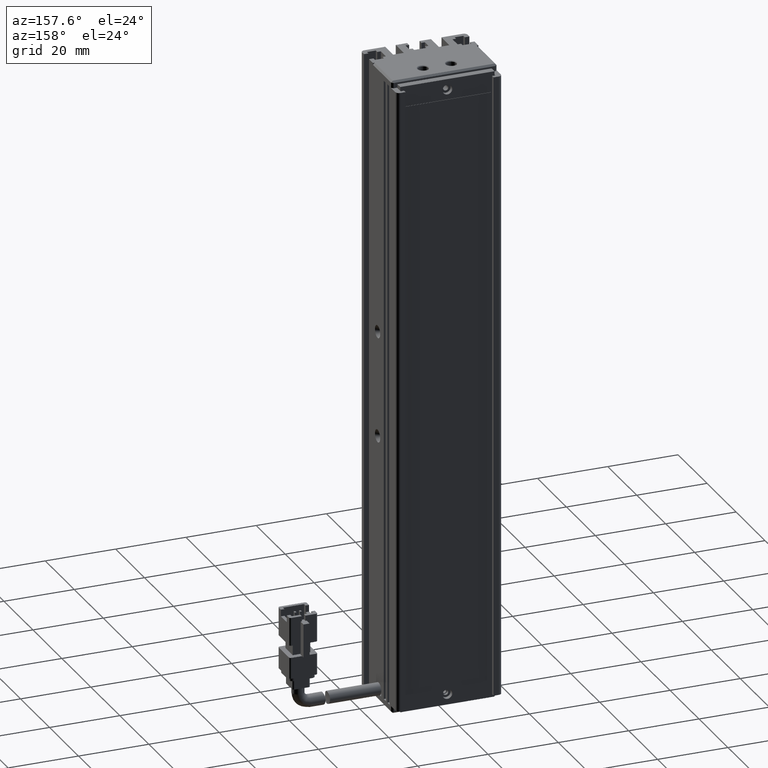
[diagram: clean part render]
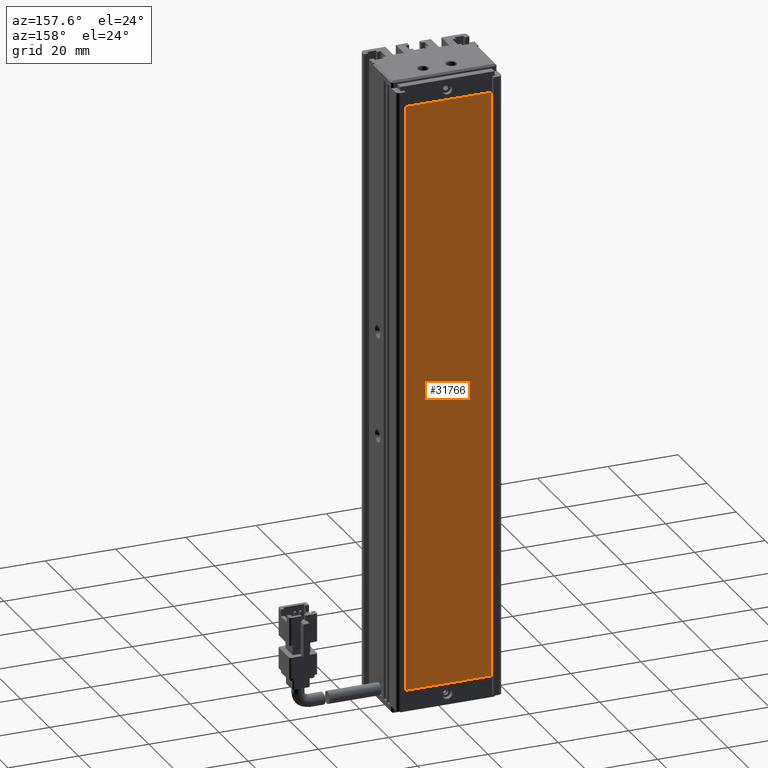
[diagram: same view with one face highlighted and labeled with its STEP entity id]
A machine part, auxiliary view. The second image highlights one B-rep face of the part: STEP entity #31766.
In plain terms, the highlighted planar face has unit normal (0, 1, 0).
Its self-contained STEP definition (entity closure, byte-faithful):
#1515 = EDGE_CURVE ( 'NONE', #23695, #19516, #21770, .T. ) ;
#1829 = DIRECTION ( 'NONE',  ( 0.0000000000000000000, 0.0000000000000000000, 1.000000000000000000 ) ) ;
#2719 = VECTOR ( 'NONE', #13380, 1000.000000000000000 ) ;
#4852 = VERTEX_POINT ( 'NONE', #5363 ) ;
#4913 = CARTESIAN_POINT ( 'NONE',  ( 28.52537974683541600, 34.29594479660387000, -198.8500000000000200 ) ) ;
#5363 = CARTESIAN_POINT ( 'NONE',  ( 53.32537974683541600, 34.29594479660387000, -198.8500000000000200 ) ) ;
#5543 = CARTESIAN_POINT ( 'NONE',  ( 28.52537974683541600, 34.29594479660387000, -30.85000000000000100 ) ) ;
#6036 = DIRECTION ( 'NONE',  ( -1.000000000000000000, 0.0000000000000000000, 0.0000000000000000000 ) ) ;
#6477 = DIRECTION ( 'NONE',  ( 0.0000000000000000000, 1.000000000000000000, 0.0000000000000000000 ) ) ;
#6504 = ORIENTED_EDGE ( 'NONE', *, *, #1515, .T. ) ;
#7527 = CARTESIAN_POINT ( 'NONE',  ( 53.32537974683541600, 34.29594479660387000, -30.85000000000000100 ) ) ;
#10009 = CARTESIAN_POINT ( 'NONE',  ( 28.52537974683541600, 34.29594479660387000, -30.85000000000000100 ) ) ;
#11590 = EDGE_CURVE ( 'NONE', #25818, #4852, #14174, .T. ) ;
#11776 = AXIS2_PLACEMENT_3D ( 'NONE', #26561, #6477, #29939 ) ;
#12856 = VECTOR ( 'NONE', #1829, 1000.000000000000000 ) ;
#13179 = VECTOR ( 'NONE', #15121, 1000.000000000000000 ) ;
#13380 = DIRECTION ( 'NONE',  ( 1.000000000000000000, 0.0000000000000000000, 0.0000000000000000000 ) ) ;
#13547 = CARTESIAN_POINT ( 'NONE',  ( 53.32537974683541600, 34.29594479660387000, -30.85000000000000100 ) ) ;
#14120 = VECTOR ( 'NONE', #6036, 1000.000000000000000 ) ;
#14174 = LINE ( 'NONE', #13547, #13179 ) ;
#14340 = ORIENTED_EDGE ( 'NONE', *, *, #11590, .T. ) ;
#14383 = ORIENTED_EDGE ( 'NONE', *, *, #37723, .T. ) ;
#15121 = DIRECTION ( 'NONE',  ( 0.0000000000000000000, 0.0000000000000000000, -1.000000000000000000 ) ) ;
#19516 = VERTEX_POINT ( 'NONE', #5543 ) ;
#20510 = LINE ( 'NONE', #10009, #2719 ) ;
#21770 = LINE ( 'NONE', #4913, #12856 ) ;
#22760 = CARTESIAN_POINT ( 'NONE',  ( 53.32537974683541600, 34.29594479660387000, -198.8500000000000200 ) ) ;
#23695 = VERTEX_POINT ( 'NONE', #33571 ) ;
#25818 = VERTEX_POINT ( 'NONE', #7527 ) ;
#26561 = CARTESIAN_POINT ( 'NONE',  ( 0.0000000000000000000, 34.29594479660387000, 0.0000000000000000000 ) ) ;
#29250 = EDGE_LOOP ( 'NONE', ( #14340, #14383, #6504, #35471 ) ) ;
#29939 = DIRECTION ( 'NONE',  ( 0.0000000000000000000, -0.0000000000000000000, 1.000000000000000000 ) ) ;
#30159 = EDGE_CURVE ( 'NONE', #19516, #25818, #20510, .T. ) ;
#31766 = ADVANCED_FACE ( 'NONE', ( #32712 ), #43214, .T. ) ;
#31893 = LINE ( 'NONE', #22760, #14120 ) ;
#32712 = FACE_OUTER_BOUND ( 'NONE', #29250, .T. ) ;
#33571 = CARTESIAN_POINT ( 'NONE',  ( 28.52537974683541600, 34.29594479660387000, -198.8500000000000200 ) ) ;
#35471 = ORIENTED_EDGE ( 'NONE', *, *, #30159, .T. ) ;
#37723 = EDGE_CURVE ( 'NONE', #4852, #23695, #31893, .T. ) ;
#43214 = PLANE ( 'NONE',  #11776 ) ;